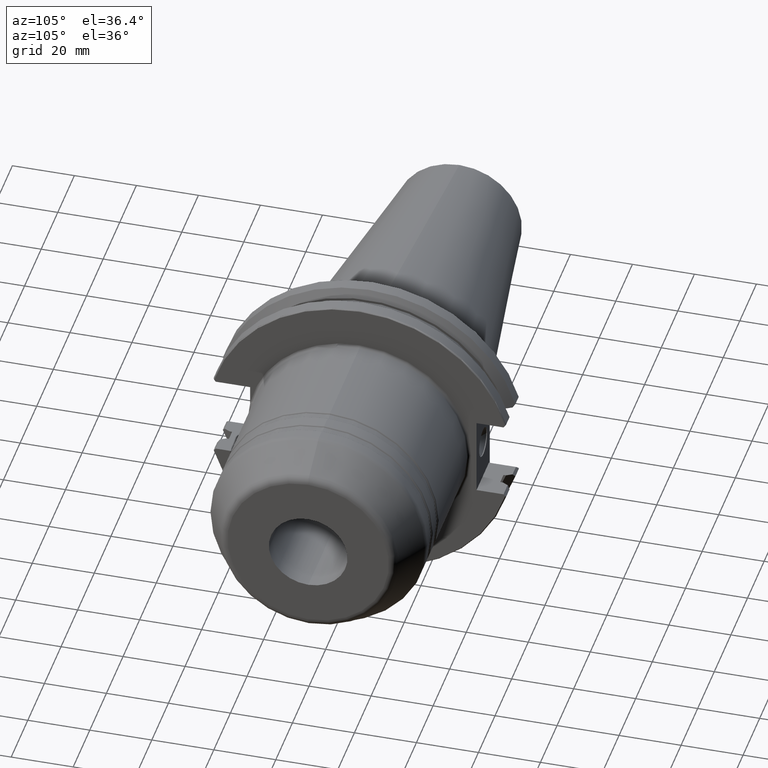
[diagram: clean part render]
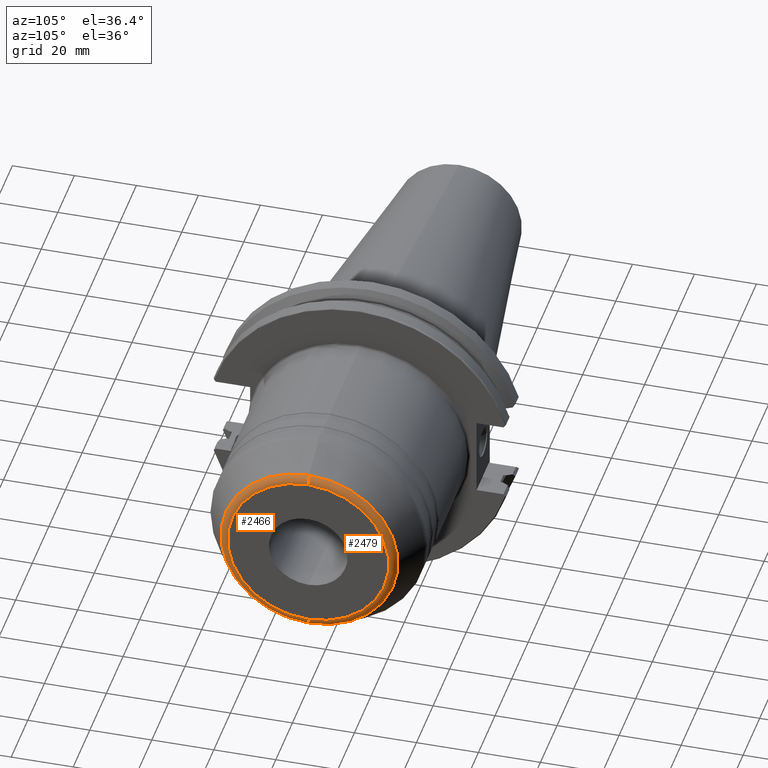
[diagram: same view with one multi-face feature highlighted, each face labeled with its STEP entity id]
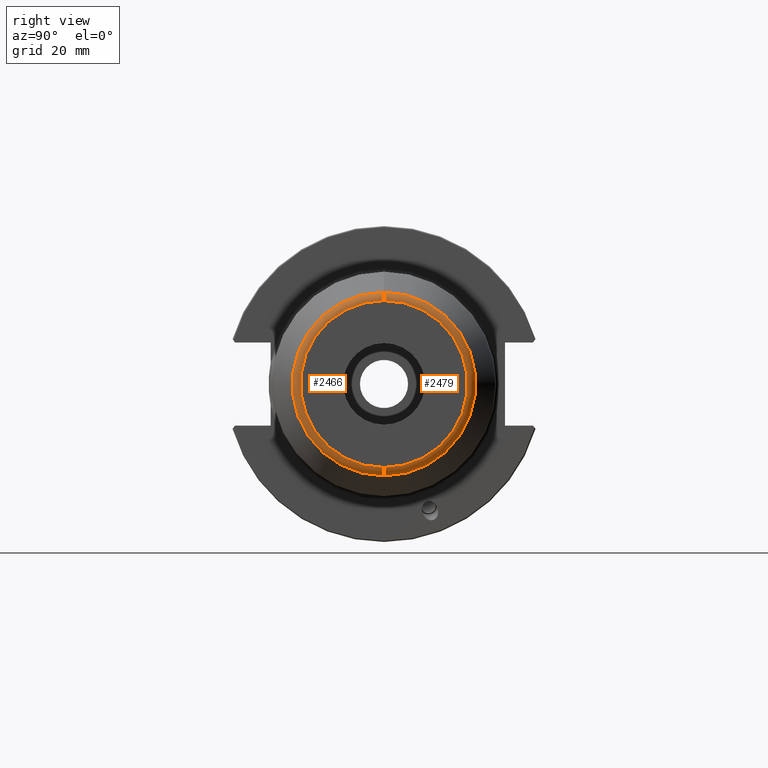
[diagram: same view with one multi-face feature highlighted, each face labeled with its STEP entity id]
A machine part, auxiliary view. The highlighted faces form ONE feature: a constant-radius fillet chain: 2 tangent blend faces with common blend radius 3 mm. The faces share edges in the B-rep.
A second angle (right view) of the same feature is appended — it is thin or edge-on in the first view.
Their STEP definitions:
[1] entity #2479 (Torus):
#327=CARTESIAN_POINT('',(7.8E1,0.E0,-2.601794919243E1));
#328=DIRECTION('',(0.E0,1.E0,0.E0));
#329=DIRECTION('',(1.E0,0.E0,0.E0));
#330=AXIS2_PLACEMENT_3D('',#327,#328,#329);
#332=CARTESIAN_POINT('',(7.8E1,0.E0,2.601794919243E1));
#333=DIRECTION('',(0.E0,-1.E0,0.E0));
#334=DIRECTION('',(1.E0,0.E0,0.E0));
#335=AXIS2_PLACEMENT_3D('',#332,#333,#334);
#342=CARTESIAN_POINT('',(8.1E1,0.E0,0.E0));
#343=DIRECTION('',(1.E0,0.E0,0.E0));
#344=DIRECTION('',(0.E0,0.E0,-1.E0));
#345=AXIS2_PLACEMENT_3D('',#342,#343,#344);
#347=CARTESIAN_POINT('',(7.95E1,0.E0,0.E0));
#348=DIRECTION('',(1.E0,0.E0,0.E0));
#349=DIRECTION('',(0.E0,0.E0,-1.E0));
#350=AXIS2_PLACEMENT_3D('',#347,#348,#349);
#1892=CARTESIAN_POINT('',(8.1E1,0.E0,-2.601794919243E1));
#1893=CARTESIAN_POINT('',(7.95E1,0.E0,-2.861602540378E1));
#1894=VERTEX_POINT('',#1892);
#1895=VERTEX_POINT('',#1893);
#1942=CARTESIAN_POINT('',(8.1E1,0.E0,2.601794919243E1));
#1943=CARTESIAN_POINT('',(7.95E1,0.E0,2.861602540378E1));
#1944=VERTEX_POINT('',#1942);
#1945=VERTEX_POINT('',#1943);
#2467=CARTESIAN_POINT('',(7.8E1,0.E0,0.E0));
#2468=DIRECTION('',(1.E0,0.E0,0.E0));
#2469=DIRECTION('',(0.E0,0.E0,1.E0));
#2470=AXIS2_PLACEMENT_3D('',#2467,#2468,#2469);
#2471=TOROIDAL_SURFACE('',#2470,2.601794919243E1,3.E0);
#2472=ORIENTED_EDGE('',*,*,#2457,.F.);
#2473=ORIENTED_EDGE('',*,*,#2443,.T.);
#2474=ORIENTED_EDGE('',*,*,#2461,.T.);
#2476=ORIENTED_EDGE('',*,*,#2475,.F.);
#2477=EDGE_LOOP('',(#2472,#2473,#2474,#2476));
#2478=FACE_OUTER_BOUND('',#2477,.F.);
#2479=ADVANCED_FACE('',(#2478),#2471,.T.);
#331=CIRCLE('',#330,3.E0);
#336=CIRCLE('',#335,3.E0);
#346=CIRCLE('',#345,2.601794919243E1);
#351=CIRCLE('',#350,2.861602540378E1);
#2443=EDGE_CURVE('',#1894,#1944,#346,.T.);
#2457=EDGE_CURVE('',#1894,#1895,#331,.T.);
#2461=EDGE_CURVE('',#1944,#1945,#336,.T.);
#2475=EDGE_CURVE('',#1895,#1945,#351,.T.);
[2] entity #2466 (Torus):
#327=CARTESIAN_POINT('',(7.8E1,0.E0,-2.601794919243E1));
#328=DIRECTION('',(0.E0,1.E0,0.E0));
#329=DIRECTION('',(1.E0,0.E0,0.E0));
#330=AXIS2_PLACEMENT_3D('',#327,#328,#329);
#332=CARTESIAN_POINT('',(7.8E1,0.E0,2.601794919243E1));
#333=DIRECTION('',(0.E0,-1.E0,0.E0));
#334=DIRECTION('',(1.E0,0.E0,0.E0));
#335=AXIS2_PLACEMENT_3D('',#332,#333,#334);
#337=CARTESIAN_POINT('',(8.1E1,0.E0,0.E0));
#338=DIRECTION('',(-1.E0,0.E0,0.E0));
#339=DIRECTION('',(0.E0,0.E0,-1.E0));
#340=AXIS2_PLACEMENT_3D('',#337,#338,#339);
#360=CARTESIAN_POINT('',(7.95E1,0.E0,0.E0));
#361=DIRECTION('',(-1.E0,0.E0,0.E0));
#362=DIRECTION('',(0.E0,0.E0,-1.E0));
#363=AXIS2_PLACEMENT_3D('',#360,#361,#362);
#1892=CARTESIAN_POINT('',(8.1E1,0.E0,-2.601794919243E1));
#1893=CARTESIAN_POINT('',(7.95E1,0.E0,-2.861602540378E1));
#1894=VERTEX_POINT('',#1892);
#1895=VERTEX_POINT('',#1893);
#1942=CARTESIAN_POINT('',(8.1E1,0.E0,2.601794919243E1));
#1943=CARTESIAN_POINT('',(7.95E1,0.E0,2.861602540378E1));
#1944=VERTEX_POINT('',#1942);
#1945=VERTEX_POINT('',#1943);
#2452=CARTESIAN_POINT('',(7.8E1,0.E0,0.E0));
#2453=DIRECTION('',(1.E0,0.E0,0.E0));
#2454=DIRECTION('',(0.E0,0.E0,1.E0));
#2455=AXIS2_PLACEMENT_3D('',#2452,#2453,#2454);
#2456=TOROIDAL_SURFACE('',#2455,2.601794919243E1,3.E0);
#2458=ORIENTED_EDGE('',*,*,#2457,.T.);
#2460=ORIENTED_EDGE('',*,*,#2459,.T.);
#2462=ORIENTED_EDGE('',*,*,#2461,.F.);
#2463=ORIENTED_EDGE('',*,*,#2441,.F.);
#2464=EDGE_LOOP('',(#2458,#2460,#2462,#2463));
#2465=FACE_OUTER_BOUND('',#2464,.F.);
#2466=ADVANCED_FACE('',(#2465),#2456,.T.);
#331=CIRCLE('',#330,3.E0);
#336=CIRCLE('',#335,3.E0);
#341=CIRCLE('',#340,2.601794919243E1);
#364=CIRCLE('',#363,2.861602540378E1);
#2441=EDGE_CURVE('',#1894,#1944,#341,.T.);
#2457=EDGE_CURVE('',#1894,#1895,#331,.T.);
#2459=EDGE_CURVE('',#1895,#1945,#364,.T.);
#2461=EDGE_CURVE('',#1944,#1945,#336,.T.);